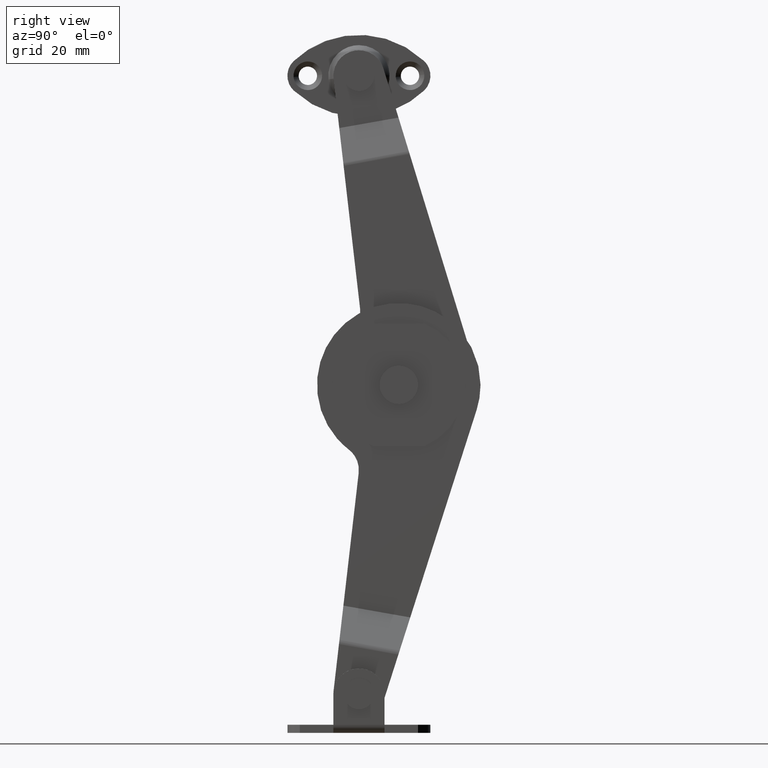
[diagram: clean part render]
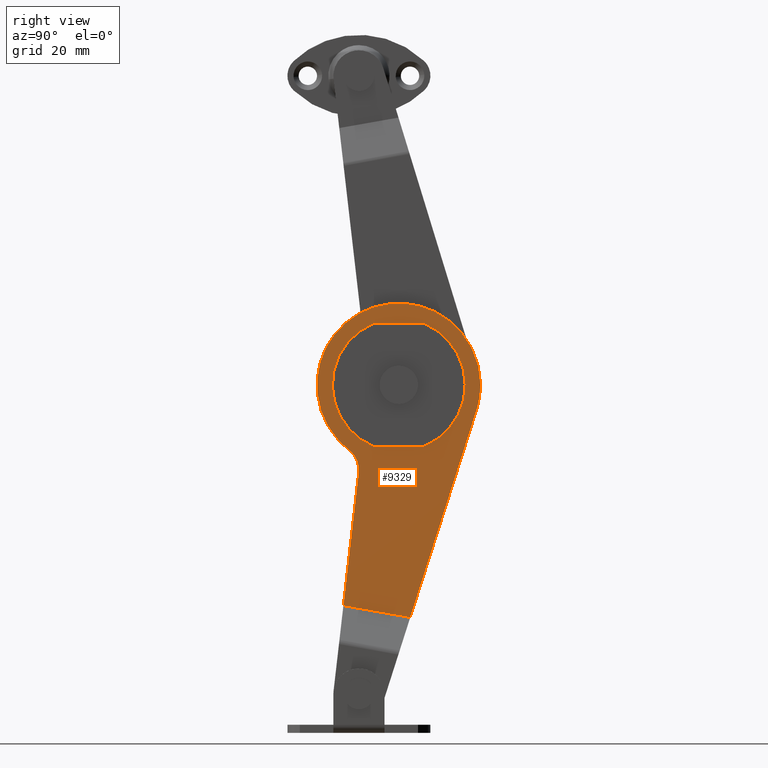
[diagram: same view with one face highlighted and labeled with its STEP entity id]
A machine part, right view. The second image highlights one B-rep face of the part: STEP entity #9329.
In plain terms, the highlighted face is a freeform B-spline surface patch.
Its self-contained STEP definition (entity closure, byte-faithful):
#8777=CARTESIAN_POINT('',(12.199999000000121,12.799999592003379,-12.000000169998600));
#8778=VERTEX_POINT('',#8777);
#8779=CARTESIAN_POINT('',(12.199999000000121,12.800000319600439,11.999999866833139));
#8780=VERTEX_POINT('',#8779);
#8781=CARTESIAN_POINT('',(12.199999000000121,12.799999592003370,-12.000000169998589));
#8782=CARTESIAN_POINT('',(12.199999000000123,20.799999737256602,-8.666667095362655));
#8783=CARTESIAN_POINT('',(12.199999000000121,20.799999999999990,-0.000000394115080));
#8784=CARTESIAN_POINT('',(12.199999000000123,20.800000262743382,8.666666307132493));
#8785=CARTESIAN_POINT('',(12.199999000000121,12.800000319600450,11.999999866833139));
#8793=(BOUNDED_CURVE()B_SPLINE_CURVE(2,(#8781,#8782,#8783,#8784,#8785),.UNSPECIFIED.,.F.,.U.)B_SPLINE_CURVE_WITH_KNOTS((3,2,3),(0.0,0.500000000000000,1.0),.UNSPECIFIED.)CURVE()GEOMETRIC_REPRESENTATION_ITEM()RATIONAL_B_SPLINE_CURVE((1.0,0.832050293316315,1.0,0.832050293316315,1.0))REPRESENTATION_ITEM(''));
#8794=EDGE_CURVE('',#8778,#8780,#8793,.T.);
#8815=CARTESIAN_POINT('',(12.199999000000121,2.799999360799120,11.999999733666280));
#8816=VERTEX_POINT('',#8815);
#8817=CARTESIAN_POINT('',(12.199999000000121,2.799999360799120,11.999999733666280));
#8818=CARTESIAN_POINT('',(12.199999000000121,12.800000319600439,11.999999866833139));
#8819=QUASI_UNIFORM_CURVE('',1,(#8817,#8818),.UNSPECIFIED.,.F.,.U.);
#8820=EDGE_CURVE('',#8816,#8780,#8819,.T.);
#8850=CARTESIAN_POINT('',(12.199999000000121,2.800000198557120,-12.000000082732120));
#8851=VERTEX_POINT('',#8850);
#8852=CARTESIAN_POINT('',(12.199999000000121,2.799999360799121,11.999999733666280));
#8853=CARTESIAN_POINT('',(12.199999000000124,-5.200000302523709,8.666666040499603));
#8854=CARTESIAN_POINT('',(12.199999000000121,-5.199999999999993,-0.000000453785581));
#8855=CARTESIAN_POINT('',(12.199999000000124,-5.199999697476279,-8.666666948070766));
#8856=CARTESIAN_POINT('',(12.199999000000121,2.800000198557112,-12.000000082732130));
#8864=(BOUNDED_CURVE()B_SPLINE_CURVE(2,(#8852,#8853,#8854,#8855,#8856),.UNSPECIFIED.,.F.,.U.)B_SPLINE_CURVE_WITH_KNOTS((3,2,3),(0.0,0.500000000000000,1.0),.UNSPECIFIED.)CURVE()GEOMETRIC_REPRESENTATION_ITEM()RATIONAL_B_SPLINE_CURVE((1.0,0.832050299430035,1.0,0.832050299430035,1.0))REPRESENTATION_ITEM(''));
#8865=EDGE_CURVE('',#8816,#8851,#8864,.T.);
#8882=CARTESIAN_POINT('',(12.199999000000121,12.799999592003379,-12.000000169998600));
#8883=CARTESIAN_POINT('',(12.199999000000121,2.800000198557120,-12.000000082732120));
#8884=QUASI_UNIFORM_CURVE('',1,(#8882,#8883),.UNSPECIFIED.,.F.,.U.);
#8885=EDGE_CURVE('',#8778,#8851,#8884,.T.);
#8926=CARTESIAN_POINT('',(12.199999000000100,-3.040317605035705,-43.195079633390698));
#8927=VERTEX_POINT('',#8926);
#8934=CARTESIAN_POINT('',(12.199999000000121,10.045858391843000,-45.502522496364001));
#8935=VERTEX_POINT('',#8934);
#8941=CARTESIAN_POINT('',(12.199999000000100,-3.040317605035705,-43.195079633390698));
#8942=CARTESIAN_POINT('',(12.199999000000121,10.045858391843000,-45.502522496364001));
#8943=QUASI_UNIFORM_CURVE('',1,(#8941,#8942),.UNSPECIFIED.,.F.,.U.);
#8944=EDGE_CURVE('',#8927,#8935,#8943,.T.);
#8998=CARTESIAN_POINT('',(12.199999000000121,23.588741688422601,-2.591403821968995));
#8999=VERTEX_POINT('',#8998);
#9000=CARTESIAN_POINT('',(12.199999000000121,23.800000000000001,1.301043E-015));
#9001=VERTEX_POINT('',#9000);
#9002=CARTESIAN_POINT('',(12.199999000000121,23.588741688422601,-2.591403821968995));
#9003=CARTESIAN_POINT('',(12.199999000000121,23.800000000000001,1.301043E-015));
#9004=QUASI_UNIFORM_CURVE('',1,(#9002,#9003),.UNSPECIFIED.,.F.,.U.);
#9005=EDGE_CURVE('',#8999,#9001,#9004,.T.);
#9037=CARTESIAN_POINT('',(12.199999000000121,23.040047105278049,-4.872470033659170));
#9038=VERTEX_POINT('',#9037);
#9039=CARTESIAN_POINT('',(12.199999000000121,23.040047105278049,-4.872470033659170));
#9040=CARTESIAN_POINT('',(12.199999000000123,23.398240010170014,-3.752105714727895));
#9041=CARTESIAN_POINT('',(12.199999000000121,23.588741688422601,-2.591403821968995));
#9049=(BOUNDED_CURVE()B_SPLINE_CURVE(2,(#9039,#9040,#9041),.UNSPECIFIED.,.F.,.U.)CURVE()GEOMETRIC_REPRESENTATION_ITEM()QUASI_UNIFORM_CURVE()RATIONAL_B_SPLINE_CURVE((1.0,0.997308716570157,1.0))REPRESENTATION_ITEM(''));
#9050=EDGE_CURVE('',#9038,#8999,#9049,.T.);
#9090=CARTESIAN_POINT('',(12.199999000000121,-0.047796569510273,-17.207867849492299));
#9091=VERTEX_POINT('',#9090);
#9099=CARTESIAN_POINT('',(12.199999000000121,-1.963846251710565,-12.675460795290920));
#9100=VERTEX_POINT('',#9099);
#9101=CARTESIAN_POINT('',(12.199999000000121,-0.047796569510295,-17.207867849492299));
#9102=CARTESIAN_POINT('',(12.199999000000123,0.275143696431169,-14.400143502018354));
#9103=CARTESIAN_POINT('',(12.199999000000121,-1.963846251710565,-12.675460795290920));
#9111=(BOUNDED_CURVE()B_SPLINE_CURVE(2,(#9101,#9102,#9103),.UNSPECIFIED.,.F.,.U.)CURVE()GEOMETRIC_REPRESENTATION_ITEM()QUASI_UNIFORM_CURVE()RATIONAL_B_SPLINE_CURVE((1.0,0.870551768570907,1.0))REPRESENTATION_ITEM(''));
#9112=EDGE_CURVE('',#9091,#9100,#9111,.T.);
#9159=CARTESIAN_POINT('',(12.199999000000121,23.800000000000001,4.775965E-016));
#9160=CARTESIAN_POINT('',(12.199999000000119,23.800000000000008,12.833180489084308));
#9161=CARTESIAN_POINT('',(12.199999000000121,11.272746786555491,15.618579633131450));
#9162=CARTESIAN_POINT('',(12.199999000000119,-1.254506426889011,18.403978777178587));
#9163=CARTESIAN_POINT('',(12.199999000000121,-6.692503719558561,6.779921528939793));
#9164=CARTESIAN_POINT('',(12.199999000000119,-12.130501012228102,-4.844135719298991));
#9165=CARTESIAN_POINT('',(12.199999000000121,-1.963846251710576,-12.675460795290929));
#9173=(BOUNDED_CURVE()B_SPLINE_CURVE(2,(#9159,#9160,#9161,#9162,#9163,#9164,#9165),.UNSPECIFIED.,.F.,.U.)B_SPLINE_CURVE_WITH_KNOTS((3,2,2,3),(0.0,0.333333333333333,0.666666666666667,1.0),.UNSPECIFIED.)CURVE()GEOMETRIC_REPRESENTATION_ITEM()RATIONAL_B_SPLINE_CURVE((1.0,0.780079058224139,1.0,0.780079058224139,1.0,0.780079058224139,1.0))REPRESENTATION_ITEM(''));
#9174=EDGE_CURVE('',#9001,#9100,#9173,.T.);
#9262=CARTESIAN_POINT('',(12.199999000000121,10.045858391843000,-45.502522496364001));
#9263=CARTESIAN_POINT('',(12.199999000000121,23.040047105278049,-4.872470033659170));
#9264=QUASI_UNIFORM_CURVE('',1,(#9262,#9263),.UNSPECIFIED.,.F.,.U.);
#9265=EDGE_CURVE('',#8935,#9038,#9264,.T.);
#9300=CARTESIAN_POINT('',(12.199999000000121,-0.047796569510273,-17.207867849492299));
#9301=CARTESIAN_POINT('',(12.199999000000100,-3.040317605035705,-43.195079633390698));
#9302=QUASI_UNIFORM_CURVE('',1,(#9300,#9301),.UNSPECIFIED.,.F.,.U.);
#9303=EDGE_CURVE('',#9091,#8927,#9302,.T.);
#9309=CARTESIAN_POINT('',(12.199999000000080,-9.789812541405713,19.049681636664229));
#9310=CARTESIAN_POINT('',(12.199999000000080,-9.789812541405713,-48.573506230751093));
#9311=CARTESIAN_POINT('',(12.199999000000080,25.397989868361101,19.049681636664229));
#9312=CARTESIAN_POINT('',(12.199999000000080,25.397989868361101,-48.573506230751093));
#9313=B_SPLINE_SURFACE_WITH_KNOTS('',1,1,((#9309,#9311),(#9310,#9312)),.UNSPECIFIED.,.F.,.F.,.U.,(2,2),(2,2),(0.0,67.623187867415325),(0.0,35.187802409766817),.UNSPECIFIED.);
#9314=ORIENTED_EDGE('',*,*,#9303,.T.);
#9315=ORIENTED_EDGE('',*,*,#8944,.T.);
#9316=ORIENTED_EDGE('',*,*,#9265,.T.);
#9317=ORIENTED_EDGE('',*,*,#9050,.T.);
#9318=ORIENTED_EDGE('',*,*,#9005,.T.);
#9319=ORIENTED_EDGE('',*,*,#9174,.T.);
#9320=ORIENTED_EDGE('',*,*,#9112,.F.);
#9321=EDGE_LOOP('',(#9314,#9315,#9316,#9317,#9318,#9319,#9320));
#9322=FACE_OUTER_BOUND('',#9321,.T.);
#9323=ORIENTED_EDGE('',*,*,#8794,.F.);
#9324=ORIENTED_EDGE('',*,*,#8885,.T.);
#9325=ORIENTED_EDGE('',*,*,#8865,.F.);
#9326=ORIENTED_EDGE('',*,*,#8820,.T.);
#9327=EDGE_LOOP('',(#9323,#9324,#9325,#9326));
#9328=FACE_BOUND('',#9327,.T.);
#9329=ADVANCED_FACE('',(#9322,#9328),#9313,.T.);